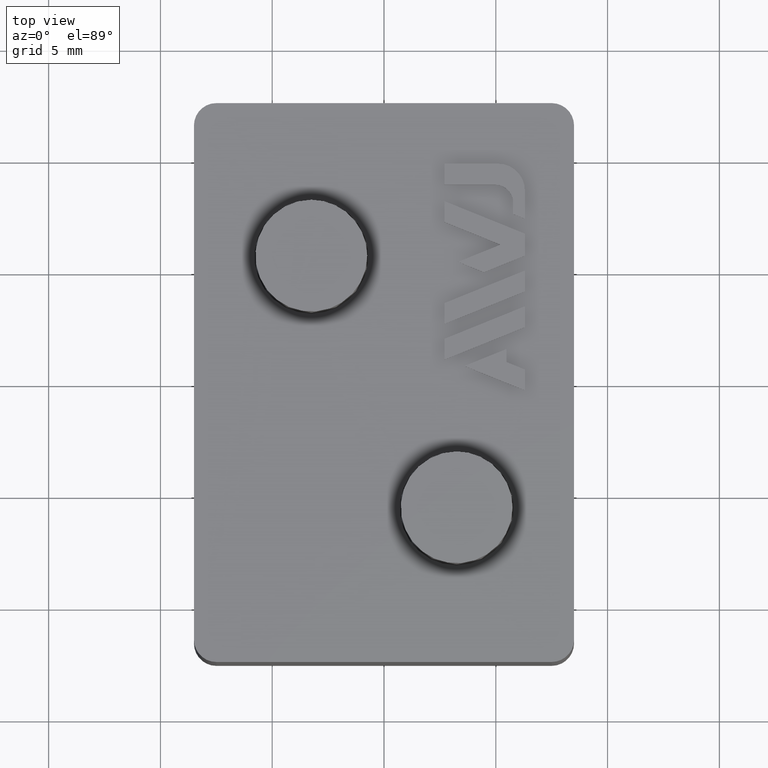
[diagram: clean part render]
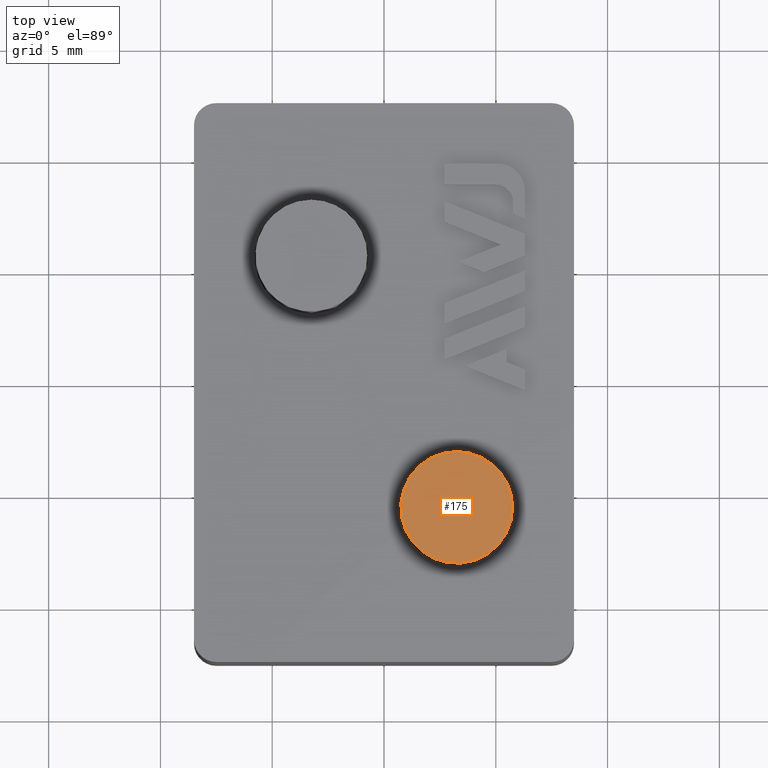
[diagram: same view with one face highlighted and labeled with its STEP entity id]
A machine part, top view. The second image highlights one B-rep face of the part: STEP entity #175.
In plain terms, the highlighted planar face has unit normal (0, -0, -1).
Its self-contained STEP definition (entity closure, byte-faithful):
#175 = ADVANCED_FACE( '', ( #430 ), #431, .F. );
#430 = FACE_OUTER_BOUND( '', #716, .T. );
#431 = PLANE( '', #717 );
#716 = EDGE_LOOP( '', ( #1603 ) );
#717 = AXIS2_PLACEMENT_3D( '', #1604, #1605, #1606 );
#1603 = ORIENTED_EDGE( '', *, *, #2108, .F. );
#1604 = CARTESIAN_POINT( '', ( 3.25000000000000, -5.62916512459885, 12.5000000000000 ) );
#1605 = DIRECTION( '', ( 0.000000000000000, -6.12303176911189E-017, -1.00000000000000 ) );
#1606 = DIRECTION( '', ( 1.00000000000000, 0.000000000000000, 0.000000000000000 ) );
#2108 = EDGE_CURVE( '', #2630, #2630, #2631, .T. );
#2630 = VERTEX_POINT( '', #3441 );
#2631 = CIRCLE( '', #3442, 2.50000000000000 );
#3441 = CARTESIAN_POINT( '', ( 5.75000000000000, -5.62916512459885, 12.5000000000000 ) );
#3442 = AXIS2_PLACEMENT_3D( '', #3870, #3871, #3872 );
#3870 = CARTESIAN_POINT( '', ( 3.25000000000000, -5.62916512459885, 12.5000000000000 ) );
#3871 = DIRECTION( '', ( 0.000000000000000, -6.12303176911189E-017, -1.00000000000000 ) );
#3872 = DIRECTION( '', ( 1.00000000000000, 0.000000000000000, 0.000000000000000 ) );